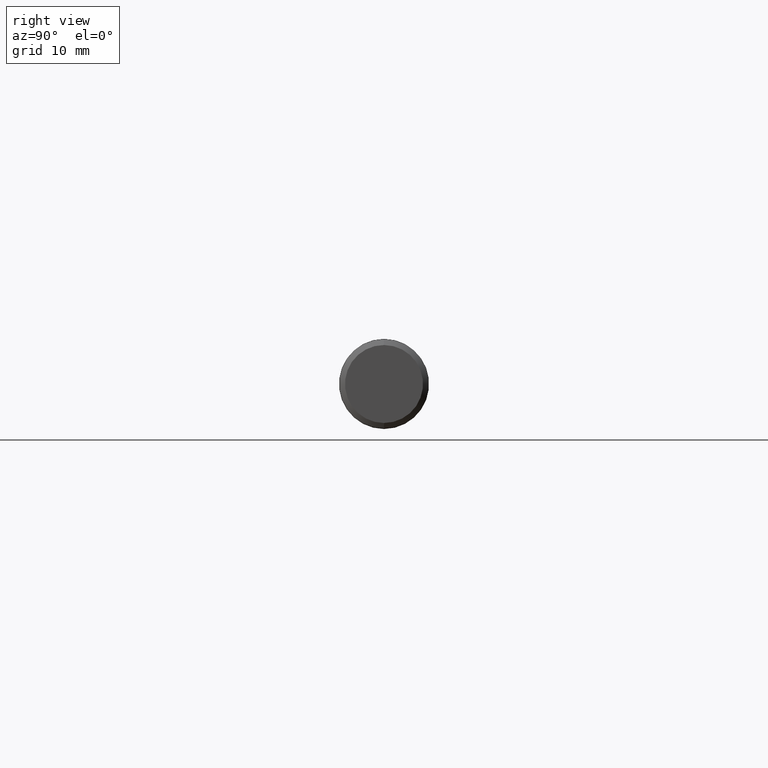
[diagram: clean part render]
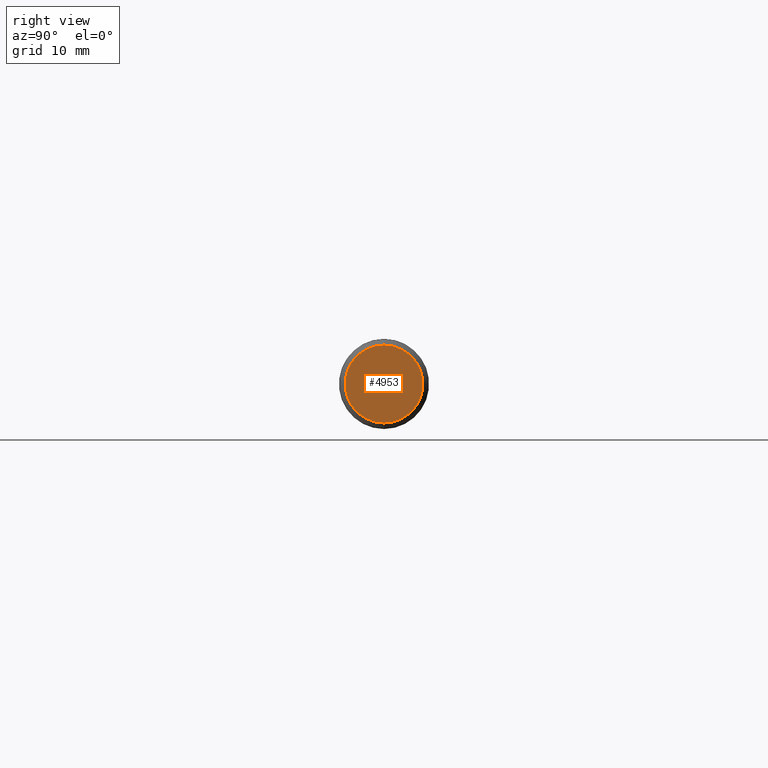
[diagram: same view with one face highlighted and labeled with its STEP entity id]
A machine part, right view. The second image highlights one B-rep face of the part: STEP entity #4953.
In plain terms, the highlighted planar face has unit normal (1, 0, -0).
Its self-contained STEP definition (entity closure, byte-faithful):
#102 = DIRECTION ( 'NONE',  ( -0.000000000000000000, 0.000000000000000000, -1.000000000000000000 ) ) ;
#348 = VERTEX_POINT ( 'NONE', #4313 ) ;
#434 = DIRECTION ( 'NONE',  ( 1.000000000000000000, -0.000000000000000000, -0.000000000000000000 ) ) ;
#720 = CIRCLE ( 'NONE', #4273, 0.2164837055963429180 ) ;
#853 = AXIS2_PLACEMENT_3D ( 'NONE', #2610, #3980, #102 ) ;
#883 = DIRECTION ( 'NONE',  ( 1.000000000000000000, -0.000000000000000000, -0.000000000000000000 ) ) ;
#1035 = AXIS2_PLACEMENT_3D ( 'NONE', #3464, #434, #2594 ) ;
#2010 = CARTESIAN_POINT ( 'NONE',  ( 4.000000000000000000, 0.000000000000000000, 0.2164837055963429180 ) ) ;
#2090 = CARTESIAN_POINT ( 'NONE',  ( 4.000000000000000000, 0.000000000000000000, 0.000000000000000000 ) ) ;
#2175 = EDGE_CURVE ( 'NONE', #2547, #348, #720, .T. ) ;
#2232 = FACE_OUTER_BOUND ( 'NONE', #2995, .T. ) ;
#2547 = VERTEX_POINT ( 'NONE', #2010 ) ;
#2594 = DIRECTION ( 'NONE',  ( 0.000000000000000000, 0.000000000000000000, -1.000000000000000000 ) ) ;
#2610 = CARTESIAN_POINT ( 'NONE',  ( 4.000000000000000000, 0.2474999999999999978, 0.000000000000000000 ) ) ;
#2652 = ORIENTED_EDGE ( 'NONE', *, *, #2175, .T. ) ;
#2789 = ORIENTED_EDGE ( 'NONE', *, *, #3968, .T. ) ;
#2995 = EDGE_LOOP ( 'NONE', ( #2652, #2789 ) ) ;
#3464 = CARTESIAN_POINT ( 'NONE',  ( 4.000000000000000000, 0.000000000000000000, 0.000000000000000000 ) ) ;
#3924 = PLANE ( 'NONE',  #853 ) ;
#3968 = EDGE_CURVE ( 'NONE', #348, #2547, #5311, .T. ) ;
#3980 = DIRECTION ( 'NONE',  ( 1.000000000000000000, 0.000000000000000000, -0.000000000000000000 ) ) ;
#4272 = DIRECTION ( 'NONE',  ( 0.000000000000000000, 0.000000000000000000, -1.000000000000000000 ) ) ;
#4273 = AXIS2_PLACEMENT_3D ( 'NONE', #2090, #883, #4272 ) ;
#4313 = CARTESIAN_POINT ( 'NONE',  ( 4.000000000000000000, 2.651160771261193166E-17, -0.2164837055963429180 ) ) ;
#4953 = ADVANCED_FACE ( 'NONE', ( #2232 ), #3924, .T. ) ;
#5311 = CIRCLE ( 'NONE', #1035, 0.2164837055963429180 ) ;